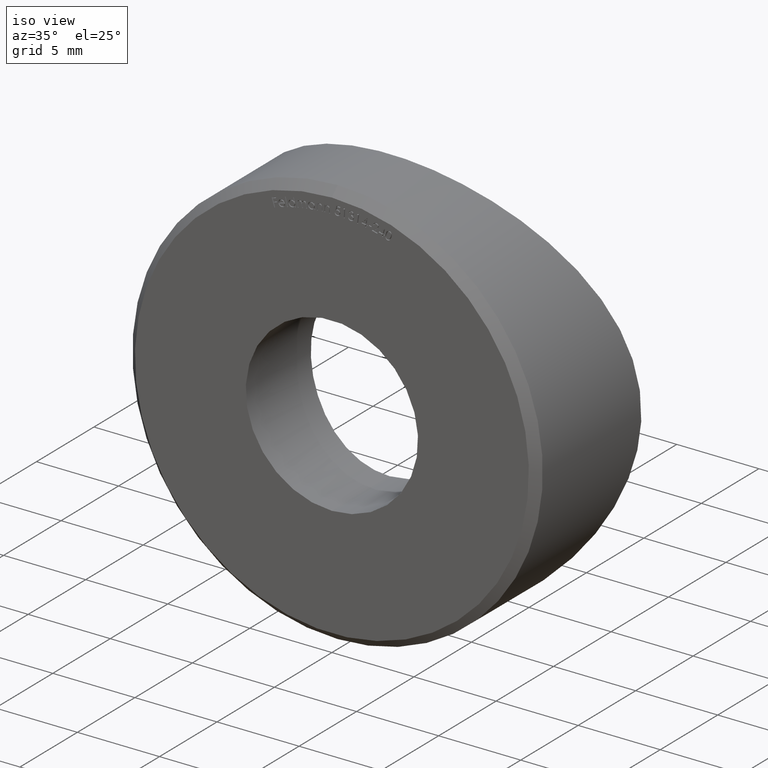
[diagram: clean part render]
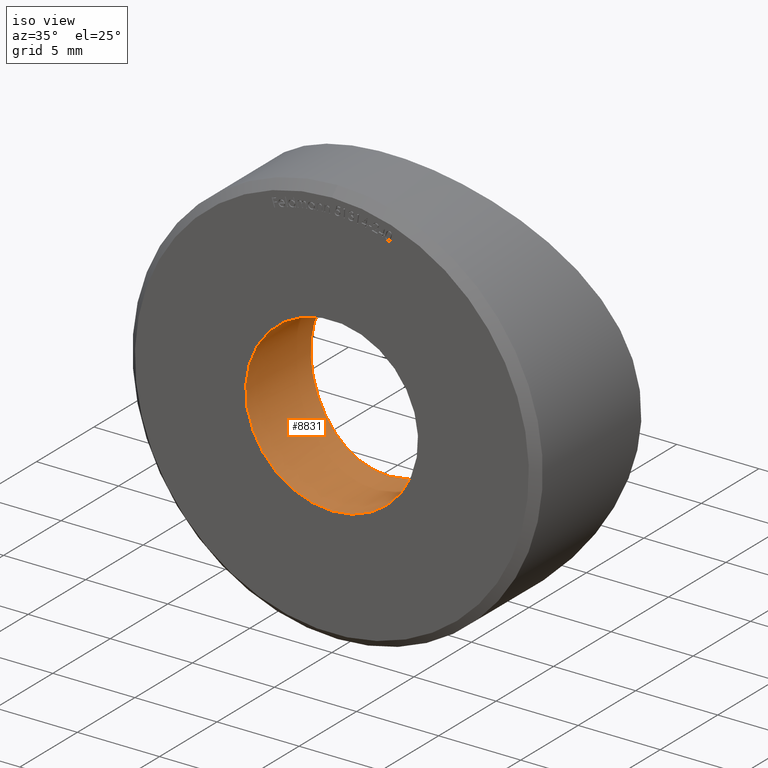
[diagram: same view with one face highlighted and labeled with its STEP entity id]
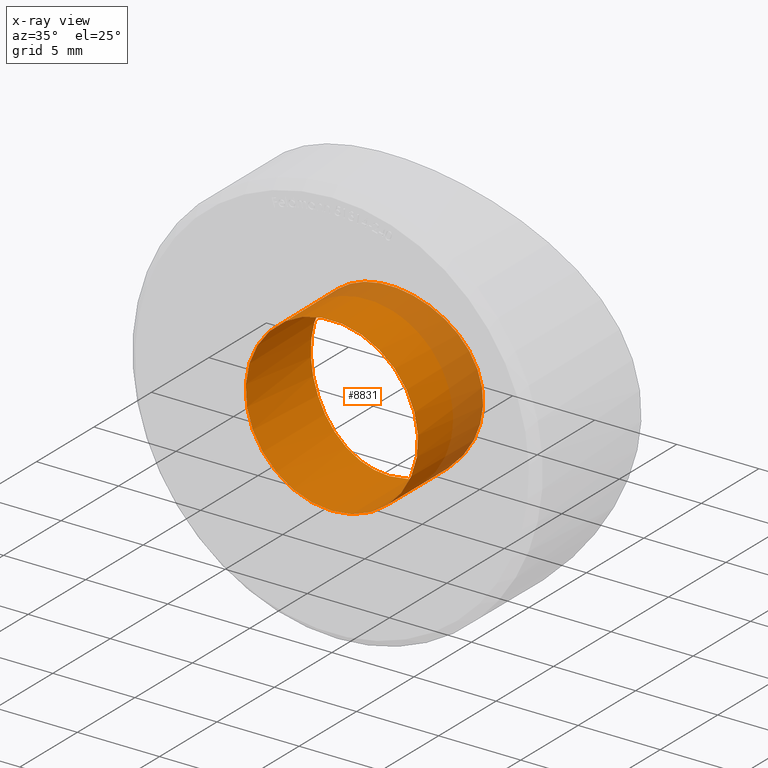
[diagram: x-ray of the same camera — body ghosted, the highlighted face saturated]
A machine part, iso view. The second image highlights one B-rep face of the part: STEP entity #8831.
The next image is the same camera in x-ray: the body ghosted, the highlighted face saturated — about 22% of this face is hidden behind the body in this view.
In plain terms, the highlighted cylindrical surface (bore or boss wall) has radius 5.25 mm, axis along (-0, -1, -0).
Its self-contained STEP definition (entity closure, byte-faithful):
#222 = CARTESIAN_POINT ( 'NONE',  ( 1.856301264975207310, 5.080824117513960125, -4.913879990049706770 ) ) ;
#258 = CARTESIAN_POINT ( 'NONE',  ( 5.249782550078506915, 5.660287654721541273, -0.3471853395587964353 ) ) ;
#332 = CARTESIAN_POINT ( 'NONE',  ( 0.3482928188141173331, 4.999999999999992895, -5.250000000000000000 ) ) ;
#372 = CARTESIAN_POINT ( 'NONE',  ( 5.215804562071238770, 5.651516051384077421, 0.6900093888622391702 ) ) ;
#412 = CARTESIAN_POINT ( 'NONE',  ( -4.557028420098094834, 5.494646404549579088, -2.629544395426800740 ) ) ;
#447 = CARTESIAN_POINT ( 'NONE',  ( -2.334606073201011878, 5.126548723113068640, -4.714790974522266254 ) ) ;
#491 = CARTESIAN_POINT ( 'NONE',  ( -4.174633164363762639, 5.414172773805524308, -3.202100824786193733 ) ) ;
#777 = CARTESIAN_POINT ( 'NONE',  ( 0.000000000000000000, 4.999999999999993783, -5.250000000000000000 ) ) ;
#900 = EDGE_CURVE ( 'NONE', #5551, #5551, #4576, .T. ) ;
#931 = EDGE_LOOP ( 'NONE', ( #3214 ) ) ;
#1051 = CARTESIAN_POINT ( 'NONE',  ( 1.195119692113853382, 5.033043468596995140, -5.115037422935019507 ) ) ;
#1089 = CARTESIAN_POINT ( 'NONE',  ( 4.913566143137525266, 5.577163049123078586, -1.857028984293717766 ) ) ;
#1238 = CARTESIAN_POINT ( 'NONE',  ( -3.951825425757641064, 5.370127231393762912, 3.473146455901923613 ) ) ;
#1274 = CARTESIAN_POINT ( 'NONE',  ( -3.467385103376235733, 5.284030878372554696, 3.956881479737956564 ) ) ;
#1312 = CARTESIAN_POINT ( 'NONE',  ( -4.714069073868987658, 5.530307696757745362, 2.336581361079232977 ) ) ;
#1355 = CARTESIAN_POINT ( 'NONE',  ( 4.709065459602299164, 5.529450863294620433, 2.327375636436206818 ) ) ;
#1395 = CARTESIAN_POINT ( 'NONE',  ( 4.981716728328739130, 5.593182636840510646, 1.692333852230807789 ) ) ;
#1568 = DIRECTION ( 'NONE',  ( 0.000000000000000000, -1.000000000000000000, 0.000000000000000000 ) ) ;
#1950 = CARTESIAN_POINT ( 'NONE',  ( 1.361866535862104710, 5.043138856958973015, -5.073229291850473999 ) ) ;
#2032 = CARTESIAN_POINT ( 'NONE',  ( 4.170906148215665965, 5.413417964574316343, -3.207030559465636976 ) ) ;
#2146 = CARTESIAN_POINT ( 'NONE',  ( 2.638594418105947970, 5.162893286697843642, 4.551585397213189665 ) ) ;
#2147 = AXIS2_PLACEMENT_3D ( 'NONE', #4929, #4851, #5832 ) ;
#2183 = CARTESIAN_POINT ( 'NONE',  ( 0.6904069605961881129, 5.010544387463969684, 5.207283677633985697 ) ) ;
#2223 = CARTESIAN_POINT ( 'NONE',  ( -5.181317232665841210, 5.642880649877076493, 0.8635990960046679987 ) ) ;
#2258 = CARTESIAN_POINT ( 'NONE',  ( -3.203931490208005162, 5.241526095445191658, 4.173116995773890281 ) ) ;
#2297 = CARTESIAN_POINT ( 'NONE',  ( -0.6915751575577213650, 5.008575434163563322, -5.215676987207945814 ) ) ;
#2835 = CARTESIAN_POINT ( 'NONE',  ( 1.692389942804078284, 5.067009909411398283, -4.972740913287791109 ) ) ;
#3037 = CARTESIAN_POINT ( 'NONE',  ( 0.1739144530318040838, 5.000018080701493339, 5.249926988399304939 ) ) ;
#3078 = CARTESIAN_POINT ( 'NONE',  ( 4.458949192526097782, 5.473997908304250259, 2.776575963143768533 ) ) ;
#3120 = CARTESIAN_POINT ( 'NONE',  ( 3.955889787724931050, 5.370887083541781237, 3.468679404777196940 ) ) ;
#3160 = CARTESIAN_POINT ( 'NONE',  ( 3.469524600180287965, 5.284374072288998470, 3.955148527488656196 ) ) ;
#3214 = ORIENTED_EDGE ( 'NONE', *, *, #4941, .T. ) ;
#3228 = CIRCLE ( 'NONE', #6850, 5.250000000000000000 ) ;
#3447 = VERTEX_POINT ( 'NONE', #4456 ) ;
#3494 = CARTESIAN_POINT ( 'NONE',  ( 0.000000000000000000, 0.000000000000000000, 0.000000000000000000 ) ) ;
#3749 = CARTESIAN_POINT ( 'NONE',  ( 3.471977237108476277, 5.284806415759980780, -3.952738150719120380 ) ) ;
#3826 = CARTESIAN_POINT ( 'NONE',  ( 4.554689430386245519, 5.494125108910930422, -2.633687016199446340 ) ) ;
#3984 = CARTESIAN_POINT ( 'NONE',  ( -4.172522485978681139, 5.413762031935463348, 3.204524394398069909 ) ) ;
#4024 = CARTESIAN_POINT ( 'NONE',  ( -5.249906580704341685, 5.660319357326280887, 0.1759868492540141438 ) ) ;
#4059 = CARTESIAN_POINT ( 'NONE',  ( -1.368274493780631040, 5.041489271743241574, -5.080294041008932560 ) ) ;
#4456 = CARTESIAN_POINT ( 'NONE',  ( 0.000000000000000000, 0.000000000000000000, -5.250000000000000000 ) ) ;
#4576 = B_SPLINE_CURVE_WITH_KNOTS ( 'NONE', 3,
 ( #4710, #332, #8311, #1051, #1950, #2835, #222, #8268, #6442, #10888, #3749, #10003, #2032, #3826, #5537, #1089, #10044, #10079, #10967, #5612, #258, #11204, #372, #7558, #1395, #6720, #1355, #4857, #3078, #11164, #3120, #3160, #10330, #2146, #6681, #8424, #4937, #8585, #2183, #9462, #3037, #11079, #5723, #5839, #6597, #4817, #5800, #2258, #1274, #1238, #3984, #9388, #1312, #9349, #10225, #2223, #7604, #11123, #4024, #8463, #8544, #10300, #5763, #8501, #412, #491, #6755, #5885, #7676, #10261, #447, #6639, #4059, #2297, #7639, #4896 ),
 .UNSPECIFIED., .T., .F.,
 ( 4, 2, 2, 2, 2, 2, 2, 2, 2, 2, 2, 2, 2, 2, 2, 2, 2, 2, 2, 2, 2, 2, 2, 2, 2, 2, 2, 2, 2, 2, 2, 2, 2, 2, 2, 2, 2, 4 ),
 ( 0.000000000000000000, 0.001029749736536538299, 0.001544624604804807231, 0.002059499473073076597, 0.003089249209609616631, 0.004118998946146156664, 0.005148748682682695831, 0.006178498419219236731, 0.006693373287487507615, 0.007208248155755777632, 0.008237997892292320268, 0.009267747628828862036, 0.01029749736536540380, 0.01081237223363367729, 0.01132724710190194904, 0.01235699683843849428, 0.01338674657497504125, 0.01441649631151158475, 0.01544624604804813173, 0.01596112091631640348, 0.01647599578458467870, 0.01750574552112122220, 0.01853549525765776917, 0.01956524499419431268, 0.02059499473073085618, 0.02162474446726740662, 0.02265449420380395013, 0.02368424394034049710, 0.02419911880860876885, 0.02471399367687704060, 0.02574374341341358410, 0.02677349314995013455, 0.02780324288648667805, 0.02883299262302322155, 0.02986274235955977199, 0.03089249209609632243, 0.03192224183263286941, 0.03295199156916941291 ),
 .UNSPECIFIED. ) ;
#4710 = CARTESIAN_POINT ( 'NONE',  ( 5.692061405548898279E-16, 4.999999999999993783, -5.250000000000000888 ) ) ;
#4817 = CARTESIAN_POINT ( 'NONE',  ( -2.326763724882516815, 5.125677045124219511, 4.718672273374899362 ) ) ;
#4851 = DIRECTION ( 'NONE',  ( -0.000000000000000000, -1.000000000000000000, -0.000000000000000000 ) ) ;
#4857 = CARTESIAN_POINT ( 'NONE',  ( 4.546950286149370690, 5.493186092229036532, 2.630060446298216892 ) ) ;
#4896 = CARTESIAN_POINT ( 'NONE',  ( 5.692061405548898279E-16, 4.999999999999993783, -5.250000000000000888 ) ) ;
#4929 = CARTESIAN_POINT ( 'NONE',  ( 0.000000000000000000, 9.933947633797185262, 0.000000000000000000 ) ) ;
#4937 = CARTESIAN_POINT ( 'NONE',  ( 1.370109680832604315, 5.041613730578180075, 5.079776652876330623 ) ) ;
#4941 = EDGE_CURVE ( 'NONE', #3447, #3447, #3228, .T. ) ;
#5402 = CYLINDRICAL_SURFACE ( 'NONE', #2147, 5.250000000000000000 ) ;
#5537 = CARTESIAN_POINT ( 'NONE',  ( 4.716867433684629241, 5.530957782354478880, -2.330325552154190571 ) ) ;
#5551 = VERTEX_POINT ( 'NONE', #777 ) ;
#5612 = CARTESIAN_POINT ( 'NONE',  ( 5.216107394478132875, 5.651591415586086242, -0.6887127317173791230 ) ) ;
#5723 = CARTESIAN_POINT ( 'NONE',  ( -0.6834625130421326800, 5.008267401410432917, 5.216930734861046304 ) ) ;
#5763 = CARTESIAN_POINT ( 'NONE',  ( -4.980773225455486397, 5.592959844265315894, -1.694680978877850297 ) ) ;
#5800 = CARTESIAN_POINT ( 'NONE',  ( -2.633894099980510717, 5.162286073055866176, 4.554413719069803967 ) ) ;
#5832 = DIRECTION ( 'NONE',  ( 0.000000000000000000, 0.000000000000000000, -1.000000000000000000 ) ) ;
#5839 = CARTESIAN_POINT ( 'NONE',  ( -1.365750012661423707, 5.041281266584854315, 5.081162682102096539 ) ) ;
#5885 = CARTESIAN_POINT ( 'NONE',  ( -3.474067900653659002, 5.285157027305109168, -3.950879168558203869 ) ) ;
#6195 = DIRECTION ( 'NONE',  ( 0.000000000000000000, 0.000000000000000000, -1.000000000000000000 ) ) ;
#6442 = CARTESIAN_POINT ( 'NONE',  ( 2.633700188510565976, 5.162264397812339034, -4.554507350926933817 ) ) ;
#6597 = CARTESIAN_POINT ( 'NONE',  ( -1.694277196003039831, 5.065423065011746218, 4.980875649727693144 ) ) ;
#6639 = CARTESIAN_POINT ( 'NONE',  ( -1.702717170127386659, 5.066105695473257065, -4.977990928980994489 ) ) ;
#6681 = CARTESIAN_POINT ( 'NONE',  ( 2.331108311218158313, 5.126147924140845191, 4.716583040656715298 ) ) ;
#6720 = CARTESIAN_POINT ( 'NONE',  ( 4.783516070047487467, 5.546608514397017409, 2.170304786147938092 ) ) ;
#6755 = CARTESIAN_POINT ( 'NONE',  ( -3.955599071852201831, 5.370860787502549805, -3.468692832417027638 ) ) ;
#6850 = AXIS2_PLACEMENT_3D ( 'NONE', #3494, #1568, #6195 ) ;
#7104 = FACE_OUTER_BOUND ( 'NONE', #7757, .T. ) ;
#7239 = FACE_OUTER_BOUND ( 'NONE', #931, .T. ) ;
#7454 = ORIENTED_EDGE ( 'NONE', *, *, #900, .F. ) ;
#7558 = CARTESIAN_POINT ( 'NONE',  ( 5.081251374976647917, 5.617830671172021617, 1.364410000967122727 ) ) ;
#7604 = CARTESIAN_POINT ( 'NONE',  ( -5.206811845200433275, 5.649344930347783844, 0.6938060542978948808 ) ) ;
#7639 = CARTESIAN_POINT ( 'NONE',  ( -0.3482928188141187209, 4.999999999999994671, -5.250000000000001776 ) ) ;
#7676 = CARTESIAN_POINT ( 'NONE',  ( -3.207994385572340956, 5.242131898017079905, -4.170118830223263906 ) ) ;
#7757 = EDGE_LOOP ( 'NONE', ( #7454 ) ) ;
#8268 = CARTESIAN_POINT ( 'NONE',  ( 2.332673091793691977, 5.126309919386770275, -4.715868956900678199 ) ) ;
#8311 = CARTESIAN_POINT ( 'NONE',  ( 0.6905009817831152530, 5.008571357332046503, -5.215686346030852683 ) ) ;
#8424 = CARTESIAN_POINT ( 'NONE',  ( 1.697412045061257313, 5.065665384897860335, 4.979860830115828030 ) ) ;
#8463 = CARTESIAN_POINT ( 'NONE',  ( -5.250184583709996744, 5.660390415746284098, -0.3435458425104651603 ) ) ;
#8501 = CARTESIAN_POINT ( 'NONE',  ( -4.718069727338652264, 5.531230710285467644, -2.328060048958199069 ) ) ;
#8544 = CARTESIAN_POINT ( 'NONE',  ( -5.216426008151655580, 5.651674964021670355, -0.6852425038322678130 ) ) ;
#8585 = CARTESIAN_POINT ( 'NONE',  ( 0.8631215505271166988, 5.016901815246479046, 5.181431176245645531 ) ) ;
#8831 = ADVANCED_FACE ( 'NONE', ( #7239, #7104 ), #5402, .F. ) ;
#9349 = CARTESIAN_POINT ( 'NONE',  ( -4.979801872886390868, 5.592714869475958750, 1.698126319491013891 ) ) ;
#9388 = CARTESIAN_POINT ( 'NONE',  ( -4.552202946183903087, 5.493598064903693512, 2.637492905591332093 ) ) ;
#9462 = CARTESIAN_POINT ( 'NONE',  ( 0.3458888001521411293, 5.002121524435432676, 5.241452662051074185 ) ) ;
#10003 = CARTESIAN_POINT ( 'NONE',  ( 3.954096179313939530, 5.370571971223760066, -3.470430553675540875 ) ) ;
#10044 = CARTESIAN_POINT ( 'NONE',  ( 4.971534562440634630, 5.591105939426937788, -1.695869588250261017 ) ) ;
#10079 = CARTESIAN_POINT ( 'NONE',  ( 5.071943245605604389, 5.615586915852544436, -1.366572822519737773 ) ) ;
#10225 = CARTESIAN_POINT ( 'NONE',  ( -5.080326323563063795, 5.617602146275915587, 1.367549305389976766 ) ) ;
#10261 = CARTESIAN_POINT ( 'NONE',  ( -2.635707909496429746, 5.162497601335969577, -4.553478104906649726 ) ) ;
#10300 = CARTESIAN_POINT ( 'NONE',  ( -5.082543711027383893, 5.618150921060790282, -1.359561331119447436 ) ) ;
#10330 = CARTESIAN_POINT ( 'NONE',  ( 3.205976302151164248, 5.241857064134533672, 4.171429740679974962 ) ) ;
#10888 = CARTESIAN_POINT ( 'NONE',  ( 3.203362158425838491, 5.241441680485744214, -4.173533847301758470 ) ) ;
#10967 = CARTESIAN_POINT ( 'NONE',  ( 5.114545198888735378, 5.626166003046236597, -1.197425489504020168 ) ) ;
#11079 = CARTESIAN_POINT ( 'NONE',  ( -0.3411744102803490053, 4.999964186728417026, 5.250144617413581294 ) ) ;
#11123 = CARTESIAN_POINT ( 'NONE',  ( -5.241125377304602928, 5.658069268870669077, 0.3505156368460878857 ) ) ;
#11164 = CARTESIAN_POINT ( 'NONE',  ( 4.174460144613166612, 5.414152773411915476, 3.201997880009250785 ) ) ;
#11204 = CARTESIAN_POINT ( 'NONE',  ( 5.250215370714824914, 5.660398284995813434, 0.3405775157333961745 ) ) ;